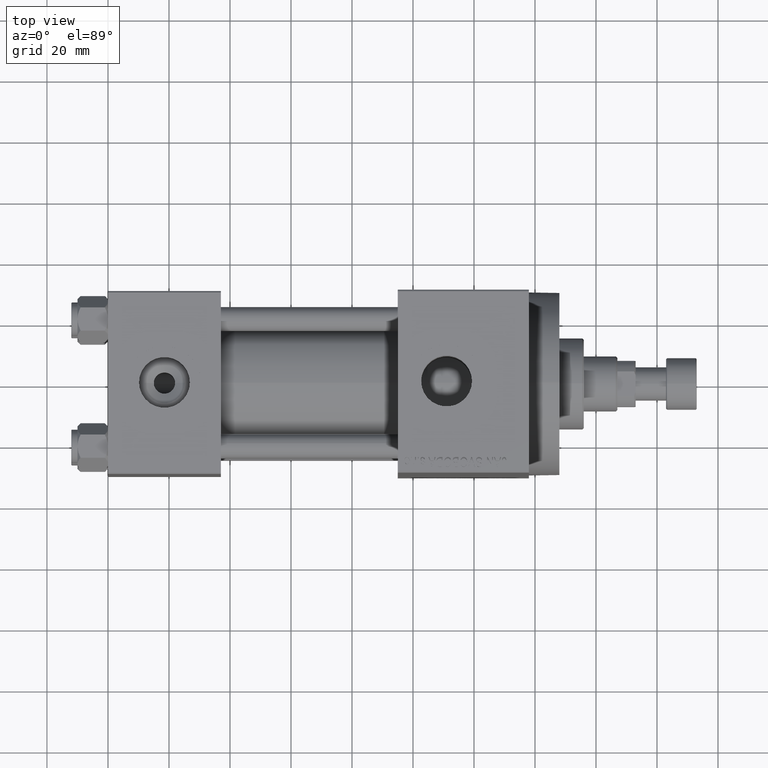
[diagram: clean part render]
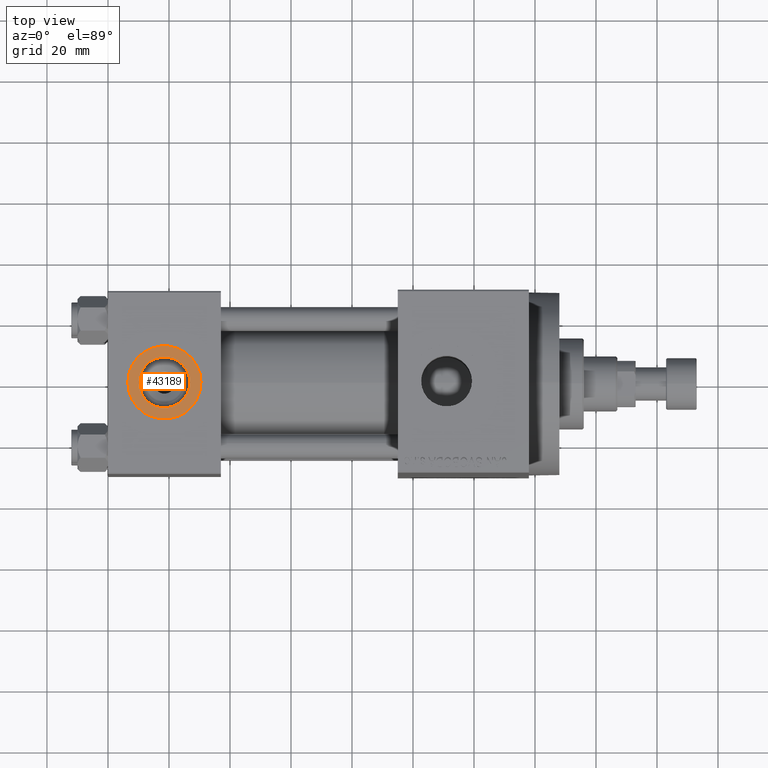
[diagram: same view with one face highlighted and labeled with its STEP entity id]
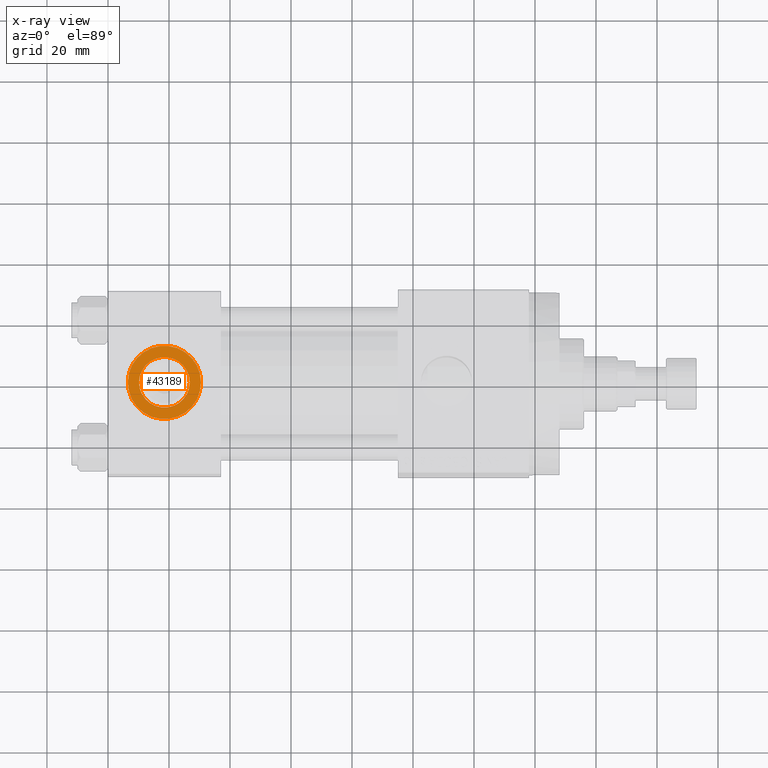
[diagram: x-ray of the same camera — body ghosted, the highlighted face saturated]
A machine part, top view. The second image highlights one B-rep face of the part: STEP entity #43189.
The next image is the same camera in x-ray: the body ghosted, the highlighted face saturated — about 0% of this face is hidden behind the body in this view.
In plain terms, the highlighted planar face has unit normal (0, 0, 1).
Its self-contained STEP definition (entity closure, byte-faithful):
#184 = FACE_BOUND ( 'NONE', #15377, .T. ) ;
#2136 = AXIS2_PLACEMENT_3D ( 'NONE', #6611, #11426, #25723 ) ;
#3094 = DIRECTION ( 'NONE',  ( 1.000000000000000000, 0.000000000000000000, -0.000000000000000000 ) ) ;
#6611 = CARTESIAN_POINT ( 'NONE',  ( 18.50000000000000000, -3.469446951953614978E-15, 29.79999999999999716 ) ) ;
#8100 = CARTESIAN_POINT ( 'NONE',  ( 26.82999999999999829, -3.469446951953614978E-15, 29.79999999999999716 ) ) ;
#8321 = ORIENTED_EDGE ( 'NONE', *, *, #25667, .T. ) ;
#9320 = VERTEX_POINT ( 'NONE', #8100 ) ;
#10284 = ORIENTED_EDGE ( 'NONE', *, *, #21242, .F. ) ;
#10573 = CARTESIAN_POINT ( 'NONE',  ( 18.50000000000000000, -3.469446951953614978E-15, 29.79999999999999716 ) ) ;
#11426 = DIRECTION ( 'NONE',  ( 0.000000000000000000, 0.000000000000000000, 1.000000000000000000 ) ) ;
#12680 = DIRECTION ( 'NONE',  ( 1.000000000000000000, 0.000000000000000000, 0.000000000000000000 ) ) ;
#12911 = DIRECTION ( 'NONE',  ( 0.000000000000000000, 0.000000000000000000, 1.000000000000000000 ) ) ;
#14702 = DIRECTION ( 'NONE',  ( 0.000000000000000000, 0.000000000000000000, 1.000000000000000000 ) ) ;
#15377 = EDGE_LOOP ( 'NONE', ( #24519, #10284 ) ) ;
#15392 = ORIENTED_EDGE ( 'NONE', *, *, #43574, .T. ) ;
#19569 = AXIS2_PLACEMENT_3D ( 'NONE', #25605, #14702, #3094 ) ;
#21242 = EDGE_CURVE ( 'NONE', #46925, #9320, #29891, .T. ) ;
#21956 = DIRECTION ( 'NONE',  ( 1.000000000000000000, 0.000000000000000000, 0.000000000000000000 ) ) ;
#22195 = DIRECTION ( 'NONE',  ( 0.000000000000000000, 0.000000000000000000, 1.000000000000000000 ) ) ;
#22239 = CIRCLE ( 'NONE', #2136, 8.330000000000000071 ) ;
#23051 = CARTESIAN_POINT ( 'NONE',  ( 10.16999999999999638, -2.449316168263869821E-15, 29.79999999999999716 ) ) ;
#23132 = DIRECTION ( 'NONE',  ( 1.000000000000000000, 0.000000000000000000, 0.000000000000000000 ) ) ;
#23591 = EDGE_CURVE ( 'NONE', #9320, #46925, #22239, .T. ) ;
#24519 = ORIENTED_EDGE ( 'NONE', *, *, #23591, .F. ) ;
#25135 = PLANE ( 'NONE',  #19569 ) ;
#25605 = CARTESIAN_POINT ( 'NONE',  ( 18.50000000000000000, -3.469446951953614978E-15, 29.79999999999999716 ) ) ;
#25667 = EDGE_CURVE ( 'NONE', #44618, #42634, #43025, .T. ) ;
#25723 = DIRECTION ( 'NONE',  ( 1.000000000000000000, 0.000000000000000000, 0.000000000000000000 ) ) ;
#26828 = CARTESIAN_POINT ( 'NONE',  ( 6.499999999999997335, -1.999870792976790833E-15, 29.79999999999999716 ) ) ;
#29891 = CIRCLE ( 'NONE', #32195, 8.330000000000000071 ) ;
#30381 = EDGE_LOOP ( 'NONE', ( #15392, #8321 ) ) ;
#30618 = CARTESIAN_POINT ( 'NONE',  ( 18.50000000000000000, -3.469446951953614978E-15, 29.79999999999999716 ) ) ;
#32195 = AXIS2_PLACEMENT_3D ( 'NONE', #10573, #22195, #21956 ) ;
#32926 = CARTESIAN_POINT ( 'NONE',  ( 18.50000000000000000, -3.469446951953614978E-15, 29.79999999999999716 ) ) ;
#34636 = AXIS2_PLACEMENT_3D ( 'NONE', #32926, #12911, #12680 ) ;
#41023 = DIRECTION ( 'NONE',  ( 0.000000000000000000, 0.000000000000000000, 1.000000000000000000 ) ) ;
#42634 = VERTEX_POINT ( 'NONE', #47472 ) ;
#43025 = CIRCLE ( 'NONE', #34636, 12.00000000000000000 ) ;
#43189 = ADVANCED_FACE ( 'NONE', ( #184, #47597 ), #25135, .T. ) ;
#43574 = EDGE_CURVE ( 'NONE', #42634, #44618, #45049, .T. ) ;
#44618 = VERTEX_POINT ( 'NONE', #26828 ) ;
#45049 = CIRCLE ( 'NONE', #45810, 12.00000000000000000 ) ;
#45810 = AXIS2_PLACEMENT_3D ( 'NONE', #30618, #41023, #23132 ) ;
#46925 = VERTEX_POINT ( 'NONE', #23051 ) ;
#47472 = CARTESIAN_POINT ( 'NONE',  ( 30.50000000000000000, -3.469446951953614978E-15, 29.79999999999999716 ) ) ;
#47597 = FACE_OUTER_BOUND ( 'NONE', #30381, .T. ) ;